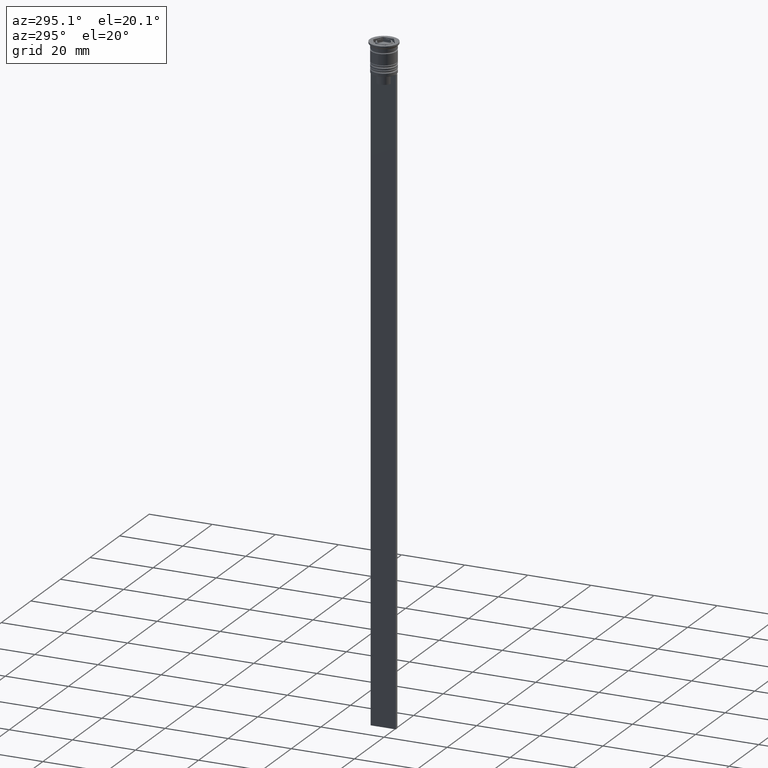
[diagram: clean part render]
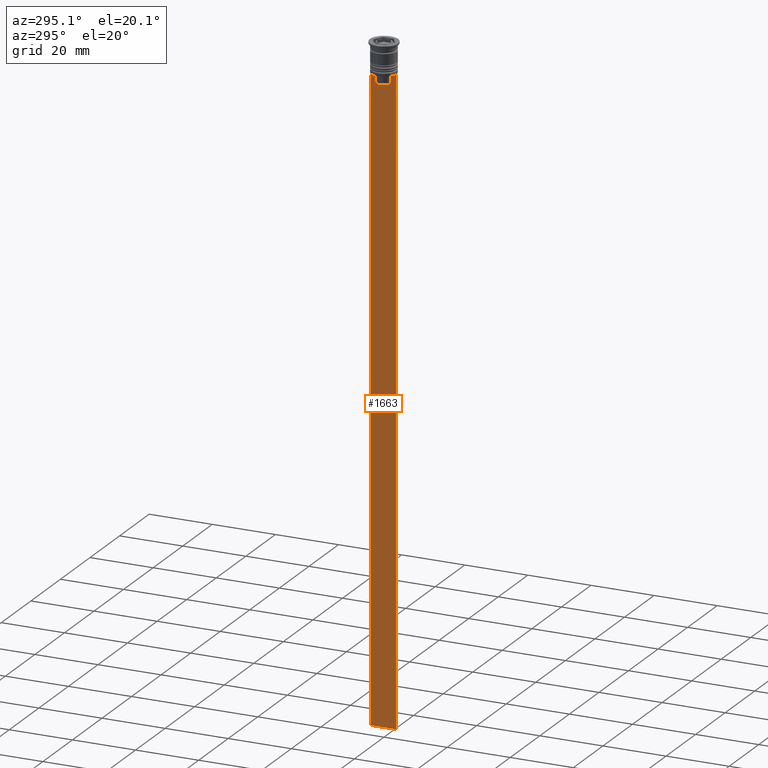
[diagram: same view with one face highlighted and labeled with its STEP entity id]
A machine part, auxiliary view. The second image highlights one B-rep face of the part: STEP entity #1663.
In plain terms, the highlighted planar face has unit normal (-1, 0, 0).
Its self-contained STEP definition (entity closure, byte-faithful):
#43 = DIRECTION ( 'NONE',  ( 0.000000000000000000, -1.000000000000000000, 0.000000000000000000 ) ) ;
#49 = LINE ( 'NONE', #2044, #547 ) ;
#66 = EDGE_CURVE ( 'NONE', #2535, #1357, #1426, .T. ) ;
#72 = CARTESIAN_POINT ( 'NONE',  ( -0.5000000000000000000, 2.517407211010871393, -9.833663366238582171 ) ) ;
#73 = B_SPLINE_CURVE_WITH_KNOTS ( 'NONE', 3,
 ( #819, #571, #2125, #2344 ),
 .UNSPECIFIED., .F., .F.,
 ( 4, 4 ),
 ( 0.01178336557230038641, 0.01249758354768160454 ),
 .UNSPECIFIED. ) ;
#90 = VERTEX_POINT ( 'NONE', #901 ) ;
#91 = ORIENTED_EDGE ( 'NONE', *, *, #2076, .F. ) ;
#132 = ORIENTED_EDGE ( 'NONE', *, *, #1748, .F. ) ;
#156 = B_SPLINE_CURVE_WITH_KNOTS ( 'NONE', 3,
 ( #1814, #1260, #72, #2211 ),
 .UNSPECIFIED., .F., .F.,
 ( 4, 4 ),
 ( 0.004956812174141195064, 0.005670477137898153989 ),
 .UNSPECIFIED. ) ;
#164 = CARTESIAN_POINT ( 'NONE',  ( -0.5000000000000000000, 2.856571371417138572, -9.500000000000000000 ) ) ;
#183 = ORIENTED_EDGE ( 'NONE', *, *, #1230, .F. ) ;
#185 = VECTOR ( 'NONE', #2007, 1000.000000000000000 ) ;
#240 = CARTESIAN_POINT ( 'NONE',  ( -0.5000000000000000000, 4.000000000000000000, -9.500000000000000000 ) ) ;
#255 = CARTESIAN_POINT ( 'NONE',  ( -0.5000000000000000000, -4.000000000000000000, -9.500000000000000000 ) ) ;
#281 = EDGE_CURVE ( 'NONE', #423, #2332, #73, .T. ) ;
#285 = CARTESIAN_POINT ( 'NONE',  ( -0.5000000000000000000, -2.347338918861097135, -10.00000000000000000 ) ) ;
#423 = VERTEX_POINT ( 'NONE', #285 ) ;
#428 = CARTESIAN_POINT ( 'NONE',  ( -0.5000000000000000000, 3.867815921162741422, -9.500000000000000000 ) ) ;
#447 = DIRECTION ( 'NONE',  ( 0.000000000000000000, 0.000000000000000000, 1.000000000000000000 ) ) ;
#462 = LINE ( 'NONE', #1803, #1947 ) ;
#469 = CARTESIAN_POINT ( 'NONE',  ( -0.5000000000000000000, -4.000000000000000000, -9.500000000000000000 ) ) ;
#490 = FACE_OUTER_BOUND ( 'NONE', #731, .T. ) ;
#493 = ORIENTED_EDGE ( 'NONE', *, *, #1553, .F. ) ;
#512 = VERTEX_POINT ( 'NONE', #1497 ) ;
#547 = VECTOR ( 'NONE', #829, 1000.000000000000000 ) ;
#571 = CARTESIAN_POINT ( 'NONE',  ( -0.5000000000000000000, -2.517408374291112416, -9.833662228483172285 ) ) ;
#572 = LINE ( 'NONE', #780, #1825 ) ;
#588 = CARTESIAN_POINT ( 'NONE',  ( -0.5000000000000000000, -4.000000000000000000, -9.500000000000000000 ) ) ;
#620 = ORIENTED_EDGE ( 'NONE', *, *, #1588, .F. ) ;
#633 = VECTOR ( 'NONE', #1618, 1000.000000000000000 ) ;
#637 = VECTOR ( 'NONE', #2100, 1000.000000000000000 ) ;
#651 = CARTESIAN_POINT ( 'NONE',  ( -0.5000000000000000000, -2.347338918861097135, -12.50000000000000000 ) ) ;
#676 = VECTOR ( 'NONE', #1395, 1000.000000000000000 ) ;
#717 = VERTEX_POINT ( 'NONE', #164 ) ;
#731 = EDGE_LOOP ( 'NONE', ( #1479, #1085, #1039, #1026, #620, #493, #91, #183, #971, #2519, #1005, #132 ) ) ;
#753 = VECTOR ( 'NONE', #846, 1000.000000000000000 ) ;
#780 = CARTESIAN_POINT ( 'NONE',  ( -0.5000000000000000000, -4.000000000000000000, -209.5000000000000284 ) ) ;
#795 = LINE ( 'NONE', #588, #185 ) ;
#819 = CARTESIAN_POINT ( 'NONE',  ( -0.5000000000000000000, -2.347338918861097135, -10.00000000000000000 ) ) ;
#829 = DIRECTION ( 'NONE',  ( 0.000000000000000000, 0.000000000000000000, -1.000000000000000000 ) ) ;
#835 = CARTESIAN_POINT ( 'NONE',  ( -0.5000000000000000000, -2.347338918861097135, 0.000000000000000000 ) ) ;
#844 = DIRECTION ( 'NONE',  ( -1.000000000000000000, 0.000000000000000000, 0.000000000000000000 ) ) ;
#846 = DIRECTION ( 'NONE',  ( 0.000000000000000000, -1.000000000000000000, 0.000000000000000000 ) ) ;
#858 = LINE ( 'NONE', #2220, #753 ) ;
#901 = CARTESIAN_POINT ( 'NONE',  ( -0.5000000000000000000, 2.347338918861097135, -10.00000000000000000 ) ) ;
#902 = VERTEX_POINT ( 'NONE', #1451 ) ;
#957 = LINE ( 'NONE', #1967, #676 ) ;
#971 = ORIENTED_EDGE ( 'NONE', *, *, #281, .F. ) ;
#1005 = ORIENTED_EDGE ( 'NONE', *, *, #1215, .F. ) ;
#1026 = ORIENTED_EDGE ( 'NONE', *, *, #66, .T. ) ;
#1039 = ORIENTED_EDGE ( 'NONE', *, *, #1386, .F. ) ;
#1085 = ORIENTED_EDGE ( 'NONE', *, *, #1537, .F. ) ;
#1140 = CARTESIAN_POINT ( 'NONE',  ( -0.5000000000000000000, 4.000000000000000000, -209.5000000000000284 ) ) ;
#1215 = EDGE_CURVE ( 'NONE', #902, #2128, #462, .T. ) ;
#1223 = VERTEX_POINT ( 'NONE', #428 ) ;
#1230 = EDGE_CURVE ( 'NONE', #2332, #1686, #858, .T. ) ;
#1231 = CARTESIAN_POINT ( 'NONE',  ( -0.5000000000000000000, 4.000000000000000000, -1.437742251701450202 ) ) ;
#1260 = CARTESIAN_POINT ( 'NONE',  ( -0.5000000000000000000, 2.687094542495897631, -9.666938847453439010 ) ) ;
#1320 = EDGE_CURVE ( 'NONE', #2128, #423, #1595, .T. ) ;
#1357 = VERTEX_POINT ( 'NONE', #1140 ) ;
#1370 = DIRECTION ( 'NONE',  ( 0.000000000000000000, 1.000000000000000000, 0.000000000000000000 ) ) ;
#1386 = EDGE_CURVE ( 'NONE', #2535, #1223, #1639, .T. ) ;
#1390 = CARTESIAN_POINT ( 'NONE',  ( -0.5000000000000000000, -2.856571371417138572, -9.500000000000000000 ) ) ;
#1395 = DIRECTION ( 'NONE',  ( 0.000000000000000000, 0.000000000000000000, -1.000000000000000000 ) ) ;
#1426 = LINE ( 'NONE', #1231, #1643 ) ;
#1451 = CARTESIAN_POINT ( 'NONE',  ( -0.5000000000000000000, 2.347338918861097135, -12.50000000000000000 ) ) ;
#1479 = ORIENTED_EDGE ( 'NONE', *, *, #2465, .F. ) ;
#1497 = CARTESIAN_POINT ( 'NONE',  ( -0.5000000000000000000, -4.000000000000000000, -209.5000000000000284 ) ) ;
#1530 = VECTOR ( 'NONE', #1607, 1000.000000000000000 ) ;
#1537 = EDGE_CURVE ( 'NONE', #1223, #717, #795, .T. ) ;
#1553 = EDGE_CURVE ( 'NONE', #1743, #512, #957, .T. ) ;
#1588 = EDGE_CURVE ( 'NONE', #512, #1357, #572, .T. ) ;
#1595 = LINE ( 'NONE', #835, #633 ) ;
#1607 = DIRECTION ( 'NONE',  ( 0.000000000000000000, -1.000000000000000000, 0.000000000000000000 ) ) ;
#1618 = DIRECTION ( 'NONE',  ( -0.000000000000000000, -0.000000000000000000, 1.000000000000000000 ) ) ;
#1628 = DIRECTION ( 'NONE',  ( 0.000000000000000000, 0.000000000000000000, -1.000000000000000000 ) ) ;
#1636 = CARTESIAN_POINT ( 'NONE',  ( -0.5000000000000000000, -4.000000000000000000, -1.437742251701450202 ) ) ;
#1639 = LINE ( 'NONE', #1852, #637 ) ;
#1643 = VECTOR ( 'NONE', #1628, 1000.000000000000000 ) ;
#1663 = ADVANCED_FACE ( 'NONE', ( #490 ), #2207, .T. ) ;
#1686 = VERTEX_POINT ( 'NONE', #1861 ) ;
#1743 = VERTEX_POINT ( 'NONE', #469 ) ;
#1748 = EDGE_CURVE ( 'NONE', #90, #902, #49, .T. ) ;
#1803 = CARTESIAN_POINT ( 'NONE',  ( -0.5000000000000000000, 2.399999999999996803, -12.50000000000000000 ) ) ;
#1814 = CARTESIAN_POINT ( 'NONE',  ( -0.5000000000000000000, 2.856571371417138572, -9.500000000000000000 ) ) ;
#1825 = VECTOR ( 'NONE', #1370, 1000.000000000000000 ) ;
#1852 = CARTESIAN_POINT ( 'NONE',  ( -0.5000000000000000000, -4.000000000000000000, -9.500000000000000000 ) ) ;
#1861 = CARTESIAN_POINT ( 'NONE',  ( -0.5000000000000000000, -3.867815921162741422, -9.500000000000000000 ) ) ;
#1947 = VECTOR ( 'NONE', #43, 1000.000000000000000 ) ;
#1967 = CARTESIAN_POINT ( 'NONE',  ( -0.5000000000000000000, -4.000000000000000000, -1.437742251701450202 ) ) ;
#2007 = DIRECTION ( 'NONE',  ( 0.000000000000000000, -1.000000000000000000, 0.000000000000000000 ) ) ;
#2027 = LINE ( 'NONE', #255, #1530 ) ;
#2044 = CARTESIAN_POINT ( 'NONE',  ( -0.5000000000000000000, 2.347338918861097135, 0.000000000000000000 ) ) ;
#2076 = EDGE_CURVE ( 'NONE', #1686, #1743, #2027, .T. ) ;
#2100 = DIRECTION ( 'NONE',  ( 0.000000000000000000, -1.000000000000000000, 0.000000000000000000 ) ) ;
#2125 = CARTESIAN_POINT ( 'NONE',  ( -0.5000000000000000000, -2.687095498514037839, -9.666937905752043037 ) ) ;
#2128 = VERTEX_POINT ( 'NONE', #651 ) ;
#2207 = PLANE ( 'NONE',  #2514 ) ;
#2211 = CARTESIAN_POINT ( 'NONE',  ( -0.5000000000000000000, 2.347338918861097135, -10.00000000000000000 ) ) ;
#2220 = CARTESIAN_POINT ( 'NONE',  ( -0.5000000000000000000, -4.000000000000000000, -9.500000000000000000 ) ) ;
#2332 = VERTEX_POINT ( 'NONE', #1390 ) ;
#2344 = CARTESIAN_POINT ( 'NONE',  ( -0.5000000000000000000, -2.856571371417138572, -9.500000000000000000 ) ) ;
#2465 = EDGE_CURVE ( 'NONE', #717, #90, #156, .T. ) ;
#2514 = AXIS2_PLACEMENT_3D ( 'NONE', #1636, #844, #447 ) ;
#2519 = ORIENTED_EDGE ( 'NONE', *, *, #1320, .F. ) ;
#2535 = VERTEX_POINT ( 'NONE', #240 ) ;